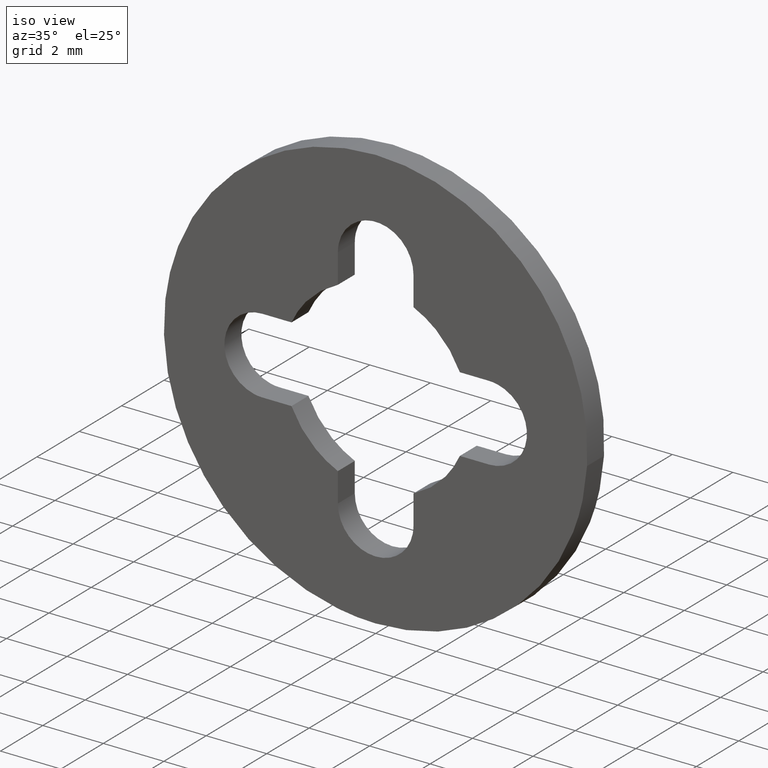
[diagram: clean part render]
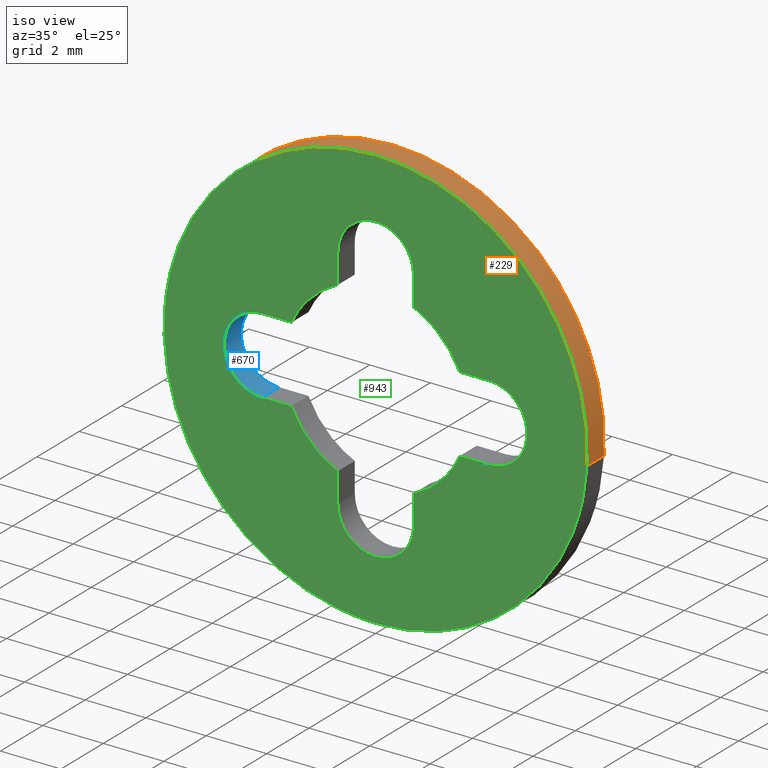
[diagram: same view with three faces highlighted in distinct colors, each labeled with its STEP entity id]
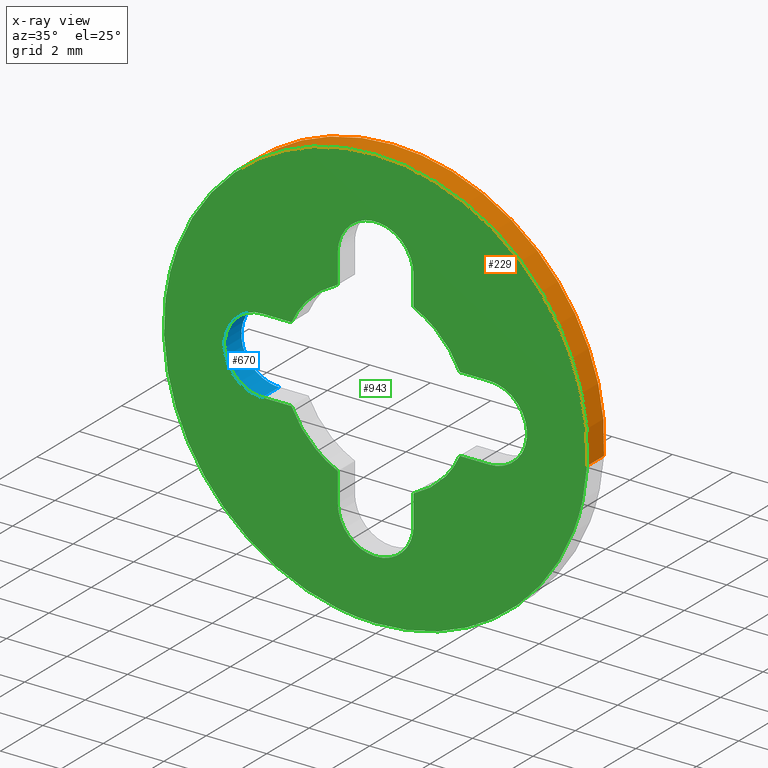
[diagram: x-ray of the same camera — body ghosted, the three highlighted faces saturated]
A machine part, iso view with three faces highlighted in distinct colors.
The next image is the same camera in x-ray (body ghosted, the three faces saturated) — at least one of them is partly hidden behind the body in this view.
Their STEP definitions:

[orange] entity #229 — the highlighted face is a freeform B-spline surface patch.
#66=CARTESIAN_POINT('',(-6.951067210688900,5.966703E-014,0.826235216185896));
#67=VERTEX_POINT('',#66);
#85=CARTESIAN_POINT('',(-6.951067204199181,0.800000000000023,0.826235270783800));
#86=VERTEX_POINT('',#85);
#87=CARTESIAN_POINT('',(-6.951067204199181,0.800000000000023,0.826235270783800));
#88=CARTESIAN_POINT('',(-6.951067210688900,5.966703E-014,0.826235216185896));
#89=QUASI_UNIFORM_CURVE('',1,(#87,#88),.UNSPECIFIED.,.F.,.U.);
#90=EDGE_CURVE('',#86,#67,#89,.T.);
#109=CARTESIAN_POINT('',(6.986943739989564,0.800000000000023,-0.427337307304794));
#110=VERTEX_POINT('',#109);
#124=CARTESIAN_POINT('',(6.986943741874936,3.927761E-014,-0.427337276478874));
#125=VERTEX_POINT('',#124);
#126=CARTESIAN_POINT('',(6.986943739989564,0.800000000000023,-0.427337307304794));
#127=CARTESIAN_POINT('',(6.986943741874936,3.927761E-014,-0.427337276478874));
#128=QUASI_UNIFORM_CURVE('',1,(#126,#127),.UNSPECIFIED.,.F.,.U.);
#129=EDGE_CURVE('',#110,#125,#128,.T.);
#147=CARTESIAN_POINT('',(6.986943588953067,0.820000000000024,-0.427339776743999));
#148=CARTESIAN_POINT('',(7.414283365697066,0.820000000000024,6.559603812209068));
#149=CARTESIAN_POINT('',(0.427339776743999,0.820000000000024,6.986943588953067));
#150=CARTESIAN_POINT('',(-6.170804435876506,0.820000000000024,7.390503377127691));
#151=CARTESIAN_POINT('',(-6.951066684545665,0.820000000000024,0.826239642597309));
#152=CARTESIAN_POINT('',(6.986943588953067,-0.020500000000001,-0.427339776743999));
#153=CARTESIAN_POINT('',(7.414283365697066,-0.020500000000001,6.559603812209068));
#154=CARTESIAN_POINT('',(0.427339776743999,-0.020500000000001,6.986943588953067));
#155=CARTESIAN_POINT('',(-6.170804435876506,-0.020500000000001,7.390503377127691));
#156=CARTESIAN_POINT('',(-6.951066684545665,-0.020500000000001,0.826239642597309));
#164=(BOUNDED_SURFACE()B_SPLINE_SURFACE(2,1,((#147,#152),(#148,#153),(#149,#154),(#150,#155),(#151,#156)),.UNSPECIFIED.,.F.,.F.,.U.)B_SPLINE_SURFACE_WITH_KNOTS((3,2,3),(2,2),(0.0,11.597979746446660,22.732040303035451),(0.0,1.0),.UNSPECIFIED.)GEOMETRIC_REPRESENTATION_ITEM()RATIONAL_B_SPLINE_SURFACE(((1.0,1.0),(0.707106781186548,0.707106781186548),(1.0,1.0),(0.718822509939086,0.718822509939086),(0.977505800795127,0.977505800795127)))REPRESENTATION_ITEM('')SURFACE());
#165=CARTESIAN_POINT('',(0.0,0.0,7.0));
#166=VERTEX_POINT('',#165);
#167=CARTESIAN_POINT('',(0.0,0.0,7.0));
#168=CARTESIAN_POINT('',(-6.217225668633081,0.0,7.0));
#169=CARTESIAN_POINT('',(-6.951067210688900,5.966703E-014,0.826235216185896));
#177=(BOUNDED_CURVE()B_SPLINE_CURVE(2,(#167,#168,#169),.UNSPECIFIED.,.F.,.U.)B_SPLINE_CURVE_WITH_KNOTS((3,3),(0.0,0.229562581136241),.UNSPECIFIED.)CURVE()GEOMETRIC_REPRESENTATION_ITEM()RATIONAL_B_SPLINE_CURVE((1.0,0.731050706767529,0.956026965128767))REPRESENTATION_ITEM(''));
#178=EDGE_CURVE('',#166,#67,#177,.T.);
#179=ORIENTED_EDGE('',*,*,#178,.F.);
#180=CARTESIAN_POINT('',(6.986943741874936,3.927761E-014,-0.427337276478874));
#181=CARTESIAN_POINT('',(7.0,0.0,-0.213868089452344));
#182=CARTESIAN_POINT('',(7.0,0.0,0.0));
#183=CARTESIAN_POINT('',(6.999999999999999,0.0,6.999999999999999));
#184=CARTESIAN_POINT('',(0.0,0.0,7.0));
#192=(BOUNDED_CURVE()B_SPLINE_CURVE(2,(#180,#181,#182,#183,#184),.UNSPECIFIED.,.F.,.U.)B_SPLINE_CURVE_WITH_KNOTS((3,2,3),(0.739333023987528,0.750000000000000,1.0),.UNSPECIFIED.)CURVE()GEOMETRIC_REPRESENTATION_ITEM()RATIONAL_B_SPLINE_CURVE((0.976072174005725,0.987502860242804,1.0,0.707106781186547,1.0))REPRESENTATION_ITEM(''));
#193=EDGE_CURVE('',#125,#166,#192,.T.);
#194=ORIENTED_EDGE('',*,*,#193,.F.);
#195=ORIENTED_EDGE('',*,*,#129,.F.);
#196=CARTESIAN_POINT('',(0.0,0.800000000000023,7.0));
#197=VERTEX_POINT('',#196);
#198=CARTESIAN_POINT('',(6.986943739989564,0.800000000000023,-0.427337307304794));
#199=CARTESIAN_POINT('',(7.0,0.800000000000023,-0.213868104908519));
#200=CARTESIAN_POINT('',(7.0,0.800000000000023,0.0));
#201=CARTESIAN_POINT('',(6.999999999999999,0.800000000000023,6.999999999999999));
#202=CARTESIAN_POINT('',(0.0,0.800000000000023,7.0));
#210=(BOUNDED_CURVE()B_SPLINE_CURVE(2,(#198,#199,#200,#201,#202),.UNSPECIFIED.,.F.,.U.)B_SPLINE_CURVE_WITH_KNOTS((3,2,3),(0.739333023226263,0.750000000000000,1.0),.UNSPECIFIED.)CURVE()GEOMETRIC_REPRESENTATION_ITEM()RATIONAL_B_SPLINE_CURVE((0.976072172374189,0.987502859350927,1.0,0.707106781186547,1.0))REPRESENTATION_ITEM(''));
#211=EDGE_CURVE('',#110,#197,#210,.T.);
#212=ORIENTED_EDGE('',*,*,#211,.T.);
#213=CARTESIAN_POINT('',(0.0,0.800000000000023,7.0));
#214=CARTESIAN_POINT('',(-6.217225619455447,0.800000000000023,7.0));
#215=CARTESIAN_POINT('',(-6.951067204199181,0.800000000000023,0.826235270783800));
#223=(BOUNDED_CURVE()B_SPLINE_CURVE(2,(#213,#214,#215),.UNSPECIFIED.,.F.,.U.)B_SPLINE_CURVE_WITH_KNOTS((3,3),(0.0,0.229562579808786),.UNSPECIFIED.)CURVE()GEOMETRIC_REPRESENTATION_ITEM()RATIONAL_B_SPLINE_CURVE((1.0,0.731050708322738,0.956026962526900))REPRESENTATION_ITEM(''));
#224=EDGE_CURVE('',#197,#86,#223,.T.);
#225=ORIENTED_EDGE('',*,*,#224,.T.);
#226=ORIENTED_EDGE('',*,*,#90,.T.);
#227=EDGE_LOOP('',(#179,#194,#195,#212,#225,#226));
#228=FACE_OUTER_BOUND('',#227,.T.);
#229=ADVANCED_FACE('',(#228),#164,.T.);

[blue] entity #670 — the highlighted face is a freeform B-spline surface patch.
#587=CARTESIAN_POINT('',(-3.750000000000000,0.0,-1.250000000000000));
#588=VERTEX_POINT('',#587);
#595=CARTESIAN_POINT('',(-3.750000000000000,0.800000000000023,-1.250000000000000));
#596=VERTEX_POINT('',#595);
#602=CARTESIAN_POINT('',(-3.750000000000000,0.800000000000023,-1.250000000000000));
#603=CARTESIAN_POINT('',(-3.750000000000000,0.0,-1.250000000000000));
#604=QUASI_UNIFORM_CURVE('',1,(#602,#603),.UNSPECIFIED.,.F.,.U.);
#605=EDGE_CURVE('',#596,#588,#604,.T.);
#610=CARTESIAN_POINT('',(-3.717278814615157,0.820000000000024,-1.249571656219446));
#611=CARTESIAN_POINT('',(-3.717278814615157,-0.020500000000001,-1.249571656219446));
#612=CARTESIAN_POINT('',(-5.034052591053624,0.820000000000023,-1.284052591053628));
#613=CARTESIAN_POINT('',(-5.034052591053624,-0.020500000000001,-1.284052591053628));
#614=CARTESIAN_POINT('',(-4.999571656219446,0.820000000000024,0.032721185384839));
#615=CARTESIAN_POINT('',(-4.999571656219446,-0.020500000000001,0.032721185384839));
#616=CARTESIAN_POINT('',(-4.965090721385269,0.820000000000023,1.349494961823307));
#617=CARTESIAN_POINT('',(-4.965090721385269,-0.020500000000001,1.349494961823307));
#618=CARTESIAN_POINT('',(-3.651926130340196,0.820000000000024,1.246146667166411));
#619=CARTESIAN_POINT('',(-3.651926130340196,-0.020500000000001,1.246146667166411));
#627=(BOUNDED_SURFACE()B_SPLINE_SURFACE(1,2,((#610,#612,#614,#616,#618),(#611,#613,#615,#617,#619)),.UNSPECIFIED.,.F.,.F.,.U.)B_SPLINE_SURFACE_WITH_KNOTS((2,2),(3,2,3),(0.0,1.0),(0.0,2.148169529834180,4.296339059668361),.UNSPECIFIED.)GEOMETRIC_REPRESENTATION_ITEM()RATIONAL_B_SPLINE_SURFACE(((1.0,0.688354575693754,1.0,0.688354575693754,1.0),(1.0,0.688354575693754,1.0,0.688354575693754,1.0)))REPRESENTATION_ITEM('')SURFACE());
#628=CARTESIAN_POINT('',(-3.750000000000000,0.0,1.250000000000000));
#629=VERTEX_POINT('',#628);
#630=CARTESIAN_POINT('',(-3.750000000000000,0.0,1.250000000000000));
#631=CARTESIAN_POINT('',(-5.000000000000001,0.0,1.250000000000000));
#632=CARTESIAN_POINT('',(-5.0,0.0,0.0));
#633=CARTESIAN_POINT('',(-5.000000000000001,0.0,-1.250000000000000));
#634=CARTESIAN_POINT('',(-3.750000000000000,0.0,-1.250000000000000));
#642=(BOUNDED_CURVE()B_SPLINE_CURVE(2,(#630,#631,#632,#633,#634),.UNSPECIFIED.,.F.,.U.)B_SPLINE_CURVE_WITH_KNOTS((3,2,3),(0.0,0.500000000000000,1.0),.UNSPECIFIED.)CURVE()GEOMETRIC_REPRESENTATION_ITEM()RATIONAL_B_SPLINE_CURVE((1.0,0.707106781186548,1.0,0.707106781186548,1.0))REPRESENTATION_ITEM(''));
#643=EDGE_CURVE('',#629,#588,#642,.T.);
#644=ORIENTED_EDGE('',*,*,#643,.T.);
#645=ORIENTED_EDGE('',*,*,#605,.F.);
#646=CARTESIAN_POINT('',(-3.750000000000000,0.800000000000023,1.250000000000000));
#647=VERTEX_POINT('',#646);
#648=CARTESIAN_POINT('',(-3.750000000000000,0.800000000000023,1.250000000000000));
#649=CARTESIAN_POINT('',(-5.000000000000001,0.800000000000023,1.250000000000000));
#650=CARTESIAN_POINT('',(-5.0,0.800000000000023,0.0));
#651=CARTESIAN_POINT('',(-5.000000000000001,0.800000000000023,-1.250000000000000));
#652=CARTESIAN_POINT('',(-3.750000000000000,0.800000000000023,-1.250000000000000));
#660=(BOUNDED_CURVE()B_SPLINE_CURVE(2,(#648,#649,#650,#651,#652),.UNSPECIFIED.,.F.,.U.)B_SPLINE_CURVE_WITH_KNOTS((3,2,3),(0.0,0.500000000000000,1.0),.UNSPECIFIED.)CURVE()GEOMETRIC_REPRESENTATION_ITEM()RATIONAL_B_SPLINE_CURVE((1.0,0.707106781186548,1.0,0.707106781186548,1.0))REPRESENTATION_ITEM(''));
#661=EDGE_CURVE('',#647,#596,#660,.T.);
#662=ORIENTED_EDGE('',*,*,#661,.F.);
#663=CARTESIAN_POINT('',(-3.750000000000000,0.800000000000023,1.250000000000000));
#664=CARTESIAN_POINT('',(-3.750000000000000,0.0,1.250000000000000));
#665=QUASI_UNIFORM_CURVE('',1,(#663,#664),.UNSPECIFIED.,.F.,.U.);
#666=EDGE_CURVE('',#647,#629,#665,.T.);
#667=ORIENTED_EDGE('',*,*,#666,.T.);
#668=EDGE_LOOP('',(#644,#645,#662,#667));
#669=FACE_OUTER_BOUND('',#668,.T.);
#670=ADVANCED_FACE('',(#669),#627,.F.);

[green] entity #943 — the highlighted face is a freeform B-spline surface patch.
#66=CARTESIAN_POINT('',(-6.951067210688900,5.966703E-014,0.826235216185896));
#67=VERTEX_POINT('',#66);
#68=CARTESIAN_POINT('',(0.0,0.0,-7.0));
#69=VERTEX_POINT('',#68);
#70=CARTESIAN_POINT('',(-6.951067210688900,5.966703E-014,0.826235216185896));
#71=CARTESIAN_POINT('',(-7.0,0.0,0.414566600960148));
#72=CARTESIAN_POINT('',(-7.0,0.0,0.0));
#73=CARTESIAN_POINT('',(-6.999999999999999,0.0,-6.999999999999999));
#74=CARTESIAN_POINT('',(0.0,0.0,-7.0));
#82=(BOUNDED_CURVE()B_SPLINE_CURVE(2,(#70,#71,#72,#73,#74),.UNSPECIFIED.,.F.,.U.)B_SPLINE_CURVE_WITH_KNOTS((3,2,3),(0.229562581136241,0.250000000000000,0.500000000000000),.UNSPECIFIED.)CURVE()GEOMETRIC_REPRESENTATION_ITEM()RATIONAL_B_SPLINE_CURVE((0.956026965128767,0.976056074419019,1.0,0.707106781186547,1.0))REPRESENTATION_ITEM(''));
#83=EDGE_CURVE('',#67,#69,#82,.T.);
#124=CARTESIAN_POINT('',(6.986943741874936,3.927761E-014,-0.427337276478874));
#125=VERTEX_POINT('',#124);
#131=CARTESIAN_POINT('',(0.0,0.0,-7.0));
#132=CARTESIAN_POINT('',(6.584944829153351,0.0,-6.999999999999999));
#133=CARTESIAN_POINT('',(6.986943741874936,3.927761E-014,-0.427337276478874));
#141=(BOUNDED_CURVE()B_SPLINE_CURVE(2,(#131,#132,#133),.UNSPECIFIED.,.F.,.U.)B_SPLINE_CURVE_WITH_KNOTS((3,3),(0.500000000000000,0.739333023987528),.UNSPECIFIED.)CURVE()GEOMETRIC_REPRESENTATION_ITEM()RATIONAL_B_SPLINE_CURVE((1.0,0.719603920943743,0.976072174005725))REPRESENTATION_ITEM(''));
#142=EDGE_CURVE('',#69,#125,#141,.T.);
#165=CARTESIAN_POINT('',(0.0,0.0,7.0));
#166=VERTEX_POINT('',#165);
#167=CARTESIAN_POINT('',(0.0,0.0,7.0));
#168=CARTESIAN_POINT('',(-6.217225668633081,0.0,7.0));
#169=CARTESIAN_POINT('',(-6.951067210688900,5.966703E-014,0.826235216185896));
#177=(BOUNDED_CURVE()B_SPLINE_CURVE(2,(#167,#168,#169),.UNSPECIFIED.,.F.,.U.)B_SPLINE_CURVE_WITH_KNOTS((3,3),(0.0,0.229562581136241),.UNSPECIFIED.)CURVE()GEOMETRIC_REPRESENTATION_ITEM()RATIONAL_B_SPLINE_CURVE((1.0,0.731050706767529,0.956026965128767))REPRESENTATION_ITEM(''));
#178=EDGE_CURVE('',#166,#67,#177,.T.);
#180=CARTESIAN_POINT('',(6.986943741874936,3.927761E-014,-0.427337276478874));
#181=CARTESIAN_POINT('',(7.0,0.0,-0.213868089452344));
#182=CARTESIAN_POINT('',(7.0,0.0,0.0));
#183=CARTESIAN_POINT('',(6.999999999999999,0.0,6.999999999999999));
#184=CARTESIAN_POINT('',(0.0,0.0,7.0));
#192=(BOUNDED_CURVE()B_SPLINE_CURVE(2,(#180,#181,#182,#183,#184),.UNSPECIFIED.,.F.,.U.)B_SPLINE_CURVE_WITH_KNOTS((3,2,3),(0.739333023987528,0.750000000000000,1.0),.UNSPECIFIED.)CURVE()GEOMETRIC_REPRESENTATION_ITEM()RATIONAL_B_SPLINE_CURVE((0.976072174005725,0.987502860242804,1.0,0.707106781186547,1.0))REPRESENTATION_ITEM(''));
#193=EDGE_CURVE('',#125,#166,#192,.T.);
#235=CARTESIAN_POINT('',(3.750000000000000,0.0,1.250000000000000));
#236=VERTEX_POINT('',#235);
#237=CARTESIAN_POINT('',(2.782085548648710,0.0,1.250000000000000));
#238=VERTEX_POINT('',#237);
#239=CARTESIAN_POINT('',(3.750000000000000,0.0,1.250000000000000));
#240=CARTESIAN_POINT('',(2.782085548648710,0.0,1.250000000000000));
#241=QUASI_UNIFORM_CURVE('',1,(#239,#240),.UNSPECIFIED.,.F.,.U.);
#242=EDGE_CURVE('',#236,#238,#241,.T.);
#284=CARTESIAN_POINT('',(3.750000000000000,0.0,-1.250000000000000));
#285=VERTEX_POINT('',#284);
#286=CARTESIAN_POINT('',(3.750000000000000,0.0,-1.250000000000000));
#287=CARTESIAN_POINT('',(5.000000000000001,0.0,-1.250000000000000));
#288=CARTESIAN_POINT('',(5.0,0.0,0.0));
#289=CARTESIAN_POINT('',(5.000000000000001,0.0,1.250000000000000));
#290=CARTESIAN_POINT('',(3.750000000000000,0.0,1.250000000000000));
#298=(BOUNDED_CURVE()B_SPLINE_CURVE(2,(#286,#287,#288,#289,#290),.UNSPECIFIED.,.F.,.U.)B_SPLINE_CURVE_WITH_KNOTS((3,2,3),(0.0,0.500000000000000,1.0),.UNSPECIFIED.)CURVE()GEOMETRIC_REPRESENTATION_ITEM()RATIONAL_B_SPLINE_CURVE((1.0,0.707106781186548,1.0,0.707106781186548,1.0))REPRESENTATION_ITEM(''));
#299=EDGE_CURVE('',#285,#236,#298,.T.);
#332=CARTESIAN_POINT('',(2.782085548648710,0.0,-1.250000000000000));
#333=VERTEX_POINT('',#332);
#334=CARTESIAN_POINT('',(2.782085548648710,0.0,-1.250000000000000));
#335=CARTESIAN_POINT('',(3.750000000000000,0.0,-1.250000000000000));
#336=QUASI_UNIFORM_CURVE('',1,(#334,#335),.UNSPECIFIED.,.F.,.U.);
#337=EDGE_CURVE('',#333,#285,#336,.T.);
#369=CARTESIAN_POINT('',(1.250000000000000,0.0,-2.782085548648710));
#370=VERTEX_POINT('',#369);
#371=CARTESIAN_POINT('',(1.250000000000000,0.0,-2.782085548648711));
#372=CARTESIAN_POINT('',(2.307118707617101,0.0,-2.307118707617101));
#373=CARTESIAN_POINT('',(2.782085548648711,0.0,-1.250000000000001));
#381=(BOUNDED_CURVE()B_SPLINE_CURVE(2,(#371,#372,#373),.UNSPECIFIED.,.F.,.U.)CURVE()GEOMETRIC_REPRESENTATION_ITEM()QUASI_UNIFORM_CURVE()RATIONAL_B_SPLINE_CURVE((1.0,0.934791814352061,1.0))REPRESENTATION_ITEM(''));
#382=EDGE_CURVE('',#370,#333,#381,.T.);
#413=CARTESIAN_POINT('',(1.249999999999980,0.0,-3.749999781833845));
#414=VERTEX_POINT('',#413);
#415=CARTESIAN_POINT('',(1.249999999999980,0.0,-3.749999781833845));
#416=CARTESIAN_POINT('',(1.250000000000000,0.0,-2.782085548648710));
#417=QUASI_UNIFORM_CURVE('',1,(#415,#416),.UNSPECIFIED.,.F.,.U.);
#418=EDGE_CURVE('',#414,#370,#417,.T.);
#454=CARTESIAN_POINT('',(-1.250000000000000,0.0,-3.750000000000000));
#455=VERTEX_POINT('',#454);
#456=CARTESIAN_POINT('',(-1.250000000000000,0.0,-3.750000000000000));
#457=CARTESIAN_POINT('',(-1.250000000000000,0.0,-4.471687884968399));
#458=CARTESIAN_POINT('',(-0.624999937020855,0.0,-4.832531791091572));
#459=CARTESIAN_POINT('',(0.000000125958290,0.0,-5.193375697214743));
#460=CARTESIAN_POINT('',(0.625000125958284,0.0,-4.832531682008489));
#461=CARTESIAN_POINT('',(1.250000125958278,0.0,-4.471687666802235));
#462=CARTESIAN_POINT('',(1.249999999999981,0.0,-3.749999781833845));
#470=(BOUNDED_CURVE()B_SPLINE_CURVE(2,(#456,#457,#458,#459,#460,#461,#462),.UNSPECIFIED.,.F.,.U.)B_SPLINE_CURVE_WITH_KNOTS((3,2,2,3),(0.0,0.333333333333333,0.666666666666667,1.0),.UNSPECIFIED.)CURVE()GEOMETRIC_REPRESENTATION_ITEM()RATIONAL_B_SPLINE_CURVE((1.0,0.866025389240028,1.0,0.866025389240028,1.0,0.866025389240028,1.0))REPRESENTATION_ITEM(''));
#471=EDGE_CURVE('',#455,#414,#470,.T.);
#506=CARTESIAN_POINT('',(-1.250000000000000,0.0,-2.782085548648710));
#507=VERTEX_POINT('',#506);
#508=CARTESIAN_POINT('',(-1.250000000000000,0.0,-2.782085548648710));
#509=CARTESIAN_POINT('',(-1.250000000000000,0.0,-3.750000000000000));
#510=QUASI_UNIFORM_CURVE('',1,(#508,#509),.UNSPECIFIED.,.F.,.U.);
#511=EDGE_CURVE('',#507,#455,#510,.T.);
#543=CARTESIAN_POINT('',(-2.782085548648710,0.0,-1.250000000000000));
#544=VERTEX_POINT('',#543);
#545=CARTESIAN_POINT('',(-2.782085548648711,0.0,-1.250000000000001));
#546=CARTESIAN_POINT('',(-2.307118707617101,0.0,-2.307118707617100));
#547=CARTESIAN_POINT('',(-1.250000000000001,0.0,-2.782085548648711));
#555=(BOUNDED_CURVE()B_SPLINE_CURVE(2,(#545,#546,#547),.UNSPECIFIED.,.F.,.U.)CURVE()GEOMETRIC_REPRESENTATION_ITEM()QUASI_UNIFORM_CURVE()RATIONAL_B_SPLINE_CURVE((1.0,0.934791814352061,1.0))REPRESENTATION_ITEM(''));
#556=EDGE_CURVE('',#544,#507,#555,.T.);
#587=CARTESIAN_POINT('',(-3.750000000000000,0.0,-1.250000000000000));
#588=VERTEX_POINT('',#587);
#589=CARTESIAN_POINT('',(-3.750000000000000,0.0,-1.250000000000000));
#590=CARTESIAN_POINT('',(-2.782085548648710,0.0,-1.250000000000000));
#591=QUASI_UNIFORM_CURVE('',1,(#589,#590),.UNSPECIFIED.,.F.,.U.);
#592=EDGE_CURVE('',#588,#544,#591,.T.);
#628=CARTESIAN_POINT('',(-3.750000000000000,0.0,1.250000000000000));
#629=VERTEX_POINT('',#628);
#630=CARTESIAN_POINT('',(-3.750000000000000,0.0,1.250000000000000));
#631=CARTESIAN_POINT('',(-5.000000000000001,0.0,1.250000000000000));
#632=CARTESIAN_POINT('',(-5.0,0.0,0.0));
#633=CARTESIAN_POINT('',(-5.000000000000001,0.0,-1.250000000000000));
#634=CARTESIAN_POINT('',(-3.750000000000000,0.0,-1.250000000000000));
#642=(BOUNDED_CURVE()B_SPLINE_CURVE(2,(#630,#631,#632,#633,#634),.UNSPECIFIED.,.F.,.U.)B_SPLINE_CURVE_WITH_KNOTS((3,2,3),(0.0,0.500000000000000,1.0),.UNSPECIFIED.)CURVE()GEOMETRIC_REPRESENTATION_ITEM()RATIONAL_B_SPLINE_CURVE((1.0,0.707106781186548,1.0,0.707106781186548,1.0))REPRESENTATION_ITEM(''));
#643=EDGE_CURVE('',#629,#588,#642,.T.);
#676=CARTESIAN_POINT('',(-2.782085548648710,0.0,1.250000000000000));
#677=VERTEX_POINT('',#676);
#678=CARTESIAN_POINT('',(-2.782085548648710,0.0,1.250000000000000));
#679=CARTESIAN_POINT('',(-3.750000000000000,0.0,1.250000000000000));
#680=QUASI_UNIFORM_CURVE('',1,(#678,#679),.UNSPECIFIED.,.F.,.U.);
#681=EDGE_CURVE('',#677,#629,#680,.T.);
#713=CARTESIAN_POINT('',(-1.250000000000000,0.0,2.782085548648710));
#714=VERTEX_POINT('',#713);
#715=CARTESIAN_POINT('',(-1.250000000000001,0.0,2.782085548648711));
#716=CARTESIAN_POINT('',(-2.307118707617101,0.0,2.307118707617101));
#717=CARTESIAN_POINT('',(-2.782085548648711,0.0,1.250000000000001));
#725=(BOUNDED_CURVE()B_SPLINE_CURVE(2,(#715,#716,#717),.UNSPECIFIED.,.F.,.U.)CURVE()GEOMETRIC_REPRESENTATION_ITEM()QUASI_UNIFORM_CURVE()RATIONAL_B_SPLINE_CURVE((1.0,0.934791814352061,1.0))REPRESENTATION_ITEM(''));
#726=EDGE_CURVE('',#714,#677,#725,.T.);
#757=CARTESIAN_POINT('',(-1.250000000000000,0.0,3.750000000000000));
#758=VERTEX_POINT('',#757);
#759=CARTESIAN_POINT('',(-1.250000000000000,0.0,3.750000000000000));
#760=CARTESIAN_POINT('',(-1.250000000000000,0.0,2.782085548648710));
#761=QUASI_UNIFORM_CURVE('',1,(#759,#760),.UNSPECIFIED.,.F.,.U.);
#762=EDGE_CURVE('',#758,#714,#761,.T.);
#798=CARTESIAN_POINT('',(1.250000000000000,0.0,3.750000000000000));
#799=VERTEX_POINT('',#798);
#800=CARTESIAN_POINT('',(1.250000000000000,0.0,3.750000000000000));
#801=CARTESIAN_POINT('',(1.250000000000000,0.0,5.000000000000001));
#802=CARTESIAN_POINT('',(0.0,0.0,5.0));
#803=CARTESIAN_POINT('',(-1.250000000000000,0.0,5.000000000000001));
#804=CARTESIAN_POINT('',(-1.250000000000000,0.0,3.750000000000000));
#812=(BOUNDED_CURVE()B_SPLINE_CURVE(2,(#800,#801,#802,#803,#804),.UNSPECIFIED.,.F.,.U.)B_SPLINE_CURVE_WITH_KNOTS((3,2,3),(0.0,0.500000000000000,1.0),.UNSPECIFIED.)CURVE()GEOMETRIC_REPRESENTATION_ITEM()RATIONAL_B_SPLINE_CURVE((1.0,0.707106781186548,1.0,0.707106781186548,1.0))REPRESENTATION_ITEM(''));
#813=EDGE_CURVE('',#799,#758,#812,.T.);
#846=CARTESIAN_POINT('',(1.250000000000000,0.0,2.782085548648710));
#847=VERTEX_POINT('',#846);
#848=CARTESIAN_POINT('',(1.250000000000000,0.0,2.782085548648710));
#849=CARTESIAN_POINT('',(1.250000000000000,0.0,3.750000000000000));
#850=QUASI_UNIFORM_CURVE('',1,(#848,#849),.UNSPECIFIED.,.F.,.U.);
#851=EDGE_CURVE('',#847,#799,#850,.T.);
#883=CARTESIAN_POINT('',(2.782085548648711,0.0,1.250000000000000));
#884=CARTESIAN_POINT('',(2.307118707617101,0.0,2.307118707617100));
#885=CARTESIAN_POINT('',(1.250000000000002,0.0,2.782085548648710));
#893=(BOUNDED_CURVE()B_SPLINE_CURVE(2,(#883,#884,#885),.UNSPECIFIED.,.F.,.U.)CURVE()GEOMETRIC_REPRESENTATION_ITEM()QUASI_UNIFORM_CURVE()RATIONAL_B_SPLINE_CURVE((1.0,0.934791814352061,1.0))REPRESENTATION_ITEM(''));
#894=EDGE_CURVE('',#238,#847,#893,.T.);
#914=CARTESIAN_POINT('',(-7.699172526060641,0.0,7.699299972865284));
#915=CARTESIAN_POINT('',(7.699129592835009,0.0,7.699299972865284));
#916=CARTESIAN_POINT('',(-7.699172526060641,0.0,-7.699300348374545));
#917=CARTESIAN_POINT('',(7.699129592835009,0.0,-7.699300348374545));
#918=B_SPLINE_SURFACE_WITH_KNOTS('',1,1,((#914,#916),(#915,#917)),.UNSPECIFIED.,.F.,.F.,.U.,(2,2),(2,2),(0.0,15.398302118895650),(0.0,15.398600321239829),.UNSPECIFIED.);
#919=ORIENTED_EDGE('',*,*,#178,.T.);
#920=ORIENTED_EDGE('',*,*,#83,.T.);
#921=ORIENTED_EDGE('',*,*,#142,.T.);
#922=ORIENTED_EDGE('',*,*,#193,.T.);
#923=EDGE_LOOP('',(#919,#920,#921,#922));
#924=FACE_OUTER_BOUND('',#923,.T.);
#925=ORIENTED_EDGE('',*,*,#894,.F.);
#926=ORIENTED_EDGE('',*,*,#242,.F.);
#927=ORIENTED_EDGE('',*,*,#299,.F.);
#928=ORIENTED_EDGE('',*,*,#337,.F.);
#929=ORIENTED_EDGE('',*,*,#382,.F.);
#930=ORIENTED_EDGE('',*,*,#418,.F.);
#931=ORIENTED_EDGE('',*,*,#471,.F.);
#932=ORIENTED_EDGE('',*,*,#511,.F.);
#933=ORIENTED_EDGE('',*,*,#556,.F.);
#934=ORIENTED_EDGE('',*,*,#592,.F.);
#935=ORIENTED_EDGE('',*,*,#643,.F.);
#936=ORIENTED_EDGE('',*,*,#681,.F.);
#937=ORIENTED_EDGE('',*,*,#726,.F.);
#938=ORIENTED_EDGE('',*,*,#762,.F.);
#939=ORIENTED_EDGE('',*,*,#813,.F.);
#940=ORIENTED_EDGE('',*,*,#851,.F.);
#941=EDGE_LOOP('',(#925,#926,#927,#928,#929,#930,#931,#932,#933,#934,#935,#936,#937,#938,#939,#940));
#942=FACE_BOUND('',#941,.T.);
#943=ADVANCED_FACE('',(#924,#942),#918,.F.);